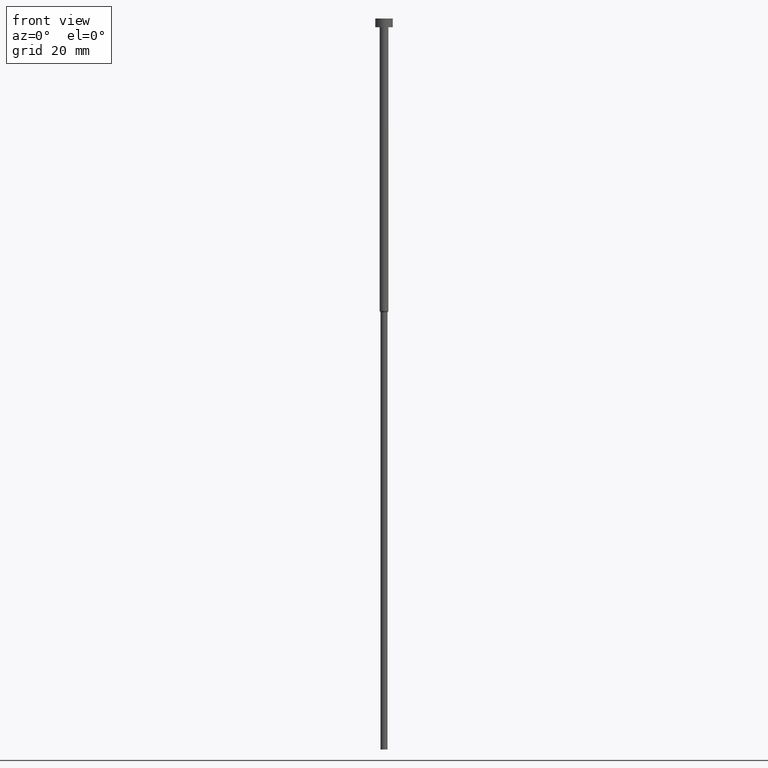
[diagram: clean part render]
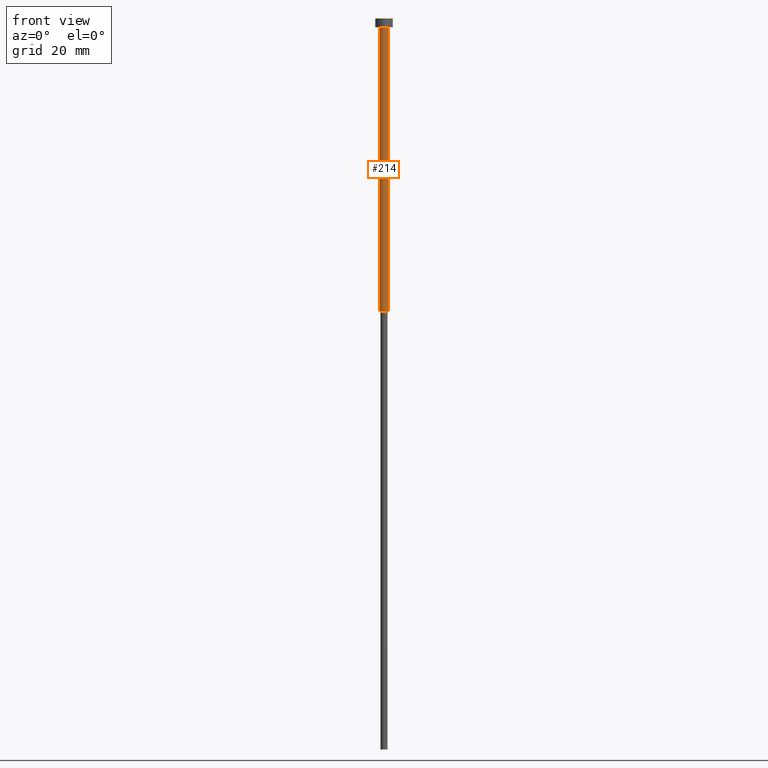
[diagram: same view with one face highlighted and labeled with its STEP entity id]
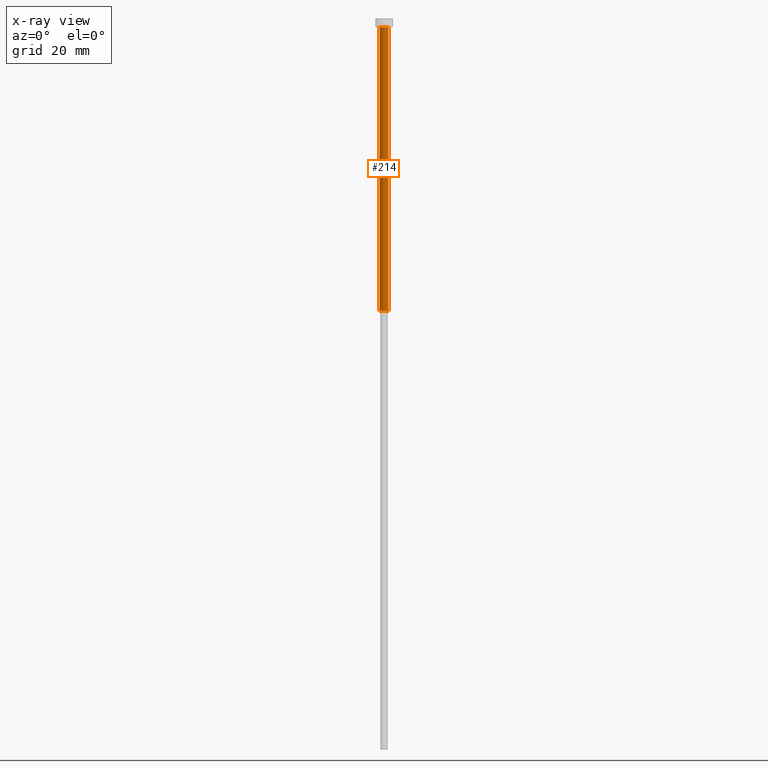
[diagram: x-ray of the same camera — body ghosted, the highlighted face saturated]
A machine part, front view. The second image highlights one B-rep face of the part: STEP entity #214.
The next image is the same camera in x-ray: the body ghosted, the highlighted face saturated — about 0% of this face is hidden behind the body in this view.
In plain terms, the highlighted cylindrical surface (edge-blend (fillet) strip) has radius 1.5 mm, axis along (-0, -0, 1).
Its self-contained STEP definition (entity closure, byte-faithful):
#8 = DIRECTION ( 'NONE',  ( 1.000000000000000000, 0.000000000000000000, 0.000000000000000000 ) ) ;
#11 = VECTOR ( 'NONE', #80, 1000.000000000000000 ) ;
#20 = EDGE_CURVE ( 'NONE', #46, #51, #163, .T. ) ;
#26 = DIRECTION ( 'NONE',  ( -0.000000000000000000, -0.000000000000000000, 1.000000000000000000 ) ) ;
#42 = ORIENTED_EDGE ( 'NONE', *, *, #263, .T. ) ;
#46 = VERTEX_POINT ( 'NONE', #318 ) ;
#49 = ORIENTED_EDGE ( 'NONE', *, *, #116, .F. ) ;
#51 = VERTEX_POINT ( 'NONE', #57 ) ;
#57 = CARTESIAN_POINT ( 'NONE',  ( 1.500000000000000000, 0.000000000000000000, -3.000000000000000888 ) ) ;
#78 = ORIENTED_EDGE ( 'NONE', *, *, #118, .F. ) ;
#80 = DIRECTION ( 'NONE',  ( -0.000000000000000000, -0.000000000000000000, 1.000000000000000000 ) ) ;
#95 = VERTEX_POINT ( 'NONE', #185 ) ;
#112 = CARTESIAN_POINT ( 'NONE',  ( 0.000000000000000000, 0.000000000000000000, -100.0000000000000000 ) ) ;
#116 = EDGE_CURVE ( 'NONE', #95, #51, #164, .T. ) ;
#118 = EDGE_CURVE ( 'NONE', #316, #95, #327, .T. ) ;
#152 = CIRCLE ( 'NONE', #205, 1.500000000000000000 ) ;
#158 = ORIENTED_EDGE ( 'NONE', *, *, #20, .T. ) ;
#163 = LINE ( 'NONE', #204, #11 ) ;
#164 = CIRCLE ( 'NONE', #181, 1.500000000000000000 ) ;
#170 = DIRECTION ( 'NONE',  ( -0.000000000000000000, -0.000000000000000000, 1.000000000000000000 ) ) ;
#181 = AXIS2_PLACEMENT_3D ( 'NONE', #323, #26, #265 ) ;
#185 = CARTESIAN_POINT ( 'NONE',  ( -1.500000000000000000, 1.836970198721029934E-16, -3.000000000000000888 ) ) ;
#187 = VECTOR ( 'NONE', #237, 1000.000000000000000 ) ;
#194 = CARTESIAN_POINT ( 'NONE',  ( 0.000000000000000000, 0.000000000000000000, 0.000000000000000000 ) ) ;
#204 = CARTESIAN_POINT ( 'NONE',  ( 1.500000000000000000, 0.000000000000000000, 0.000000000000000000 ) ) ;
#205 = AXIS2_PLACEMENT_3D ( 'NONE', #112, #170, #8 ) ;
#213 = CYLINDRICAL_SURFACE ( 'NONE', #268, 1.500000000000000000 ) ;
#214 = ADVANCED_FACE ( 'NONE', ( #242 ), #213, .T. ) ;
#220 = CARTESIAN_POINT ( 'NONE',  ( -1.500000000000000000, 1.836970198721029934E-16, -100.0000000000000000 ) ) ;
#235 = CARTESIAN_POINT ( 'NONE',  ( -1.500000000000000000, 1.836970198721029934E-16, 0.000000000000000000 ) ) ;
#237 = DIRECTION ( 'NONE',  ( -0.000000000000000000, -0.000000000000000000, 1.000000000000000000 ) ) ;
#242 = FACE_OUTER_BOUND ( 'NONE', #275, .T. ) ;
#263 = EDGE_CURVE ( 'NONE', #316, #46, #152, .T. ) ;
#265 = DIRECTION ( 'NONE',  ( 1.000000000000000000, 0.000000000000000000, 0.000000000000000000 ) ) ;
#268 = AXIS2_PLACEMENT_3D ( 'NONE', #194, #274, #331 ) ;
#274 = DIRECTION ( 'NONE',  ( -0.000000000000000000, -0.000000000000000000, 1.000000000000000000 ) ) ;
#275 = EDGE_LOOP ( 'NONE', ( #78, #42, #158, #49 ) ) ;
#316 = VERTEX_POINT ( 'NONE', #220 ) ;
#318 = CARTESIAN_POINT ( 'NONE',  ( 1.500000000000000000, 0.000000000000000000, -100.0000000000000000 ) ) ;
#323 = CARTESIAN_POINT ( 'NONE',  ( 0.000000000000000000, 0.000000000000000000, -3.000000000000000888 ) ) ;
#327 = LINE ( 'NONE', #235, #187 ) ;
#331 = DIRECTION ( 'NONE',  ( 1.000000000000000000, 0.000000000000000000, 0.000000000000000000 ) ) ;